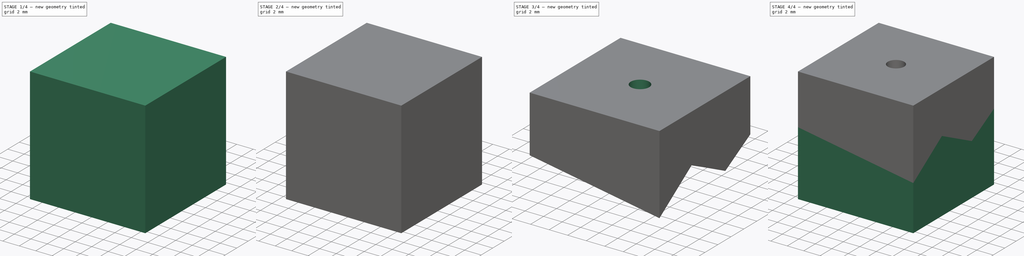
[diagram: build sequence overview — one tinted view per stage of 4, left to right]
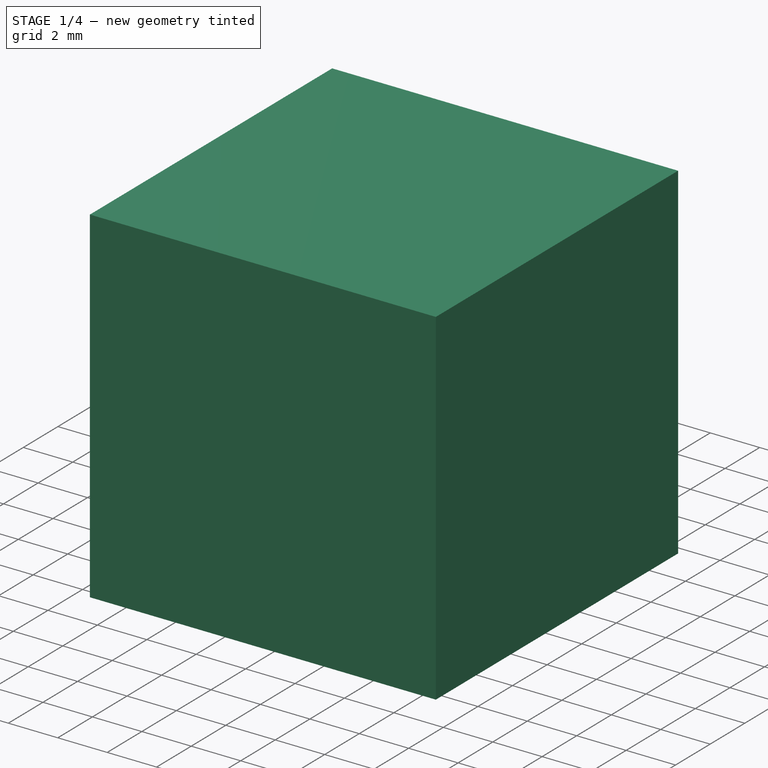
[diagram: stage 1 of 4 — iso view after this stage's code; geometry added in this stage tinted green]
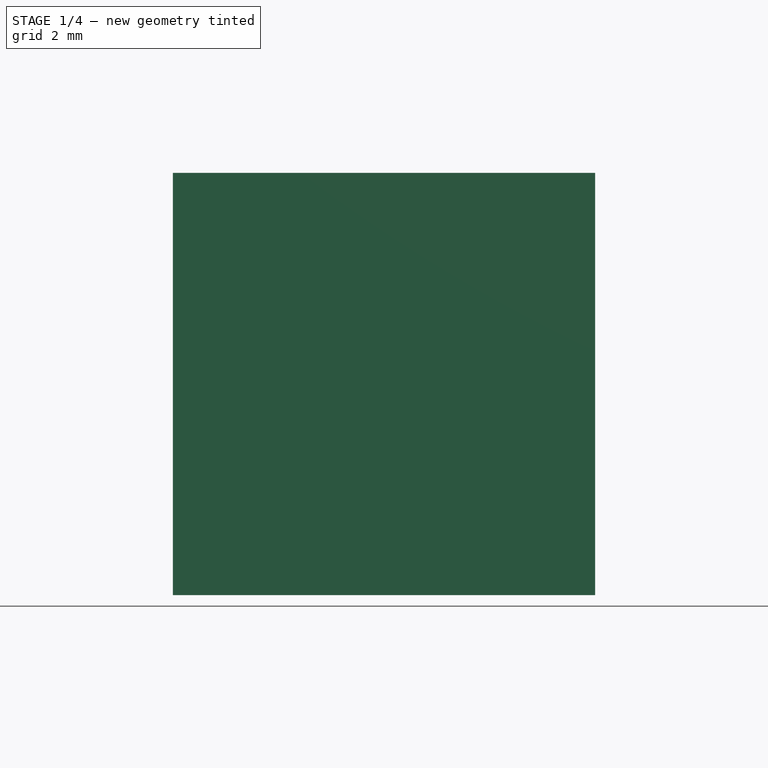
[diagram: stage 1 of 4 — front view after this stage's code; geometry added in this stage tinted green]
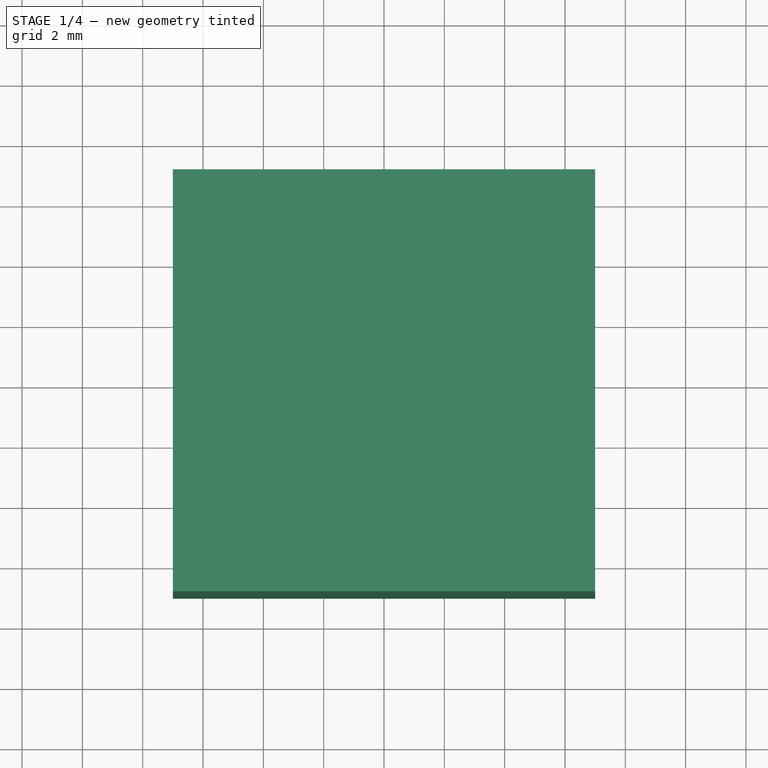
[diagram: stage 1 of 4 — top view after this stage's code; geometry added in this stage tinted green]
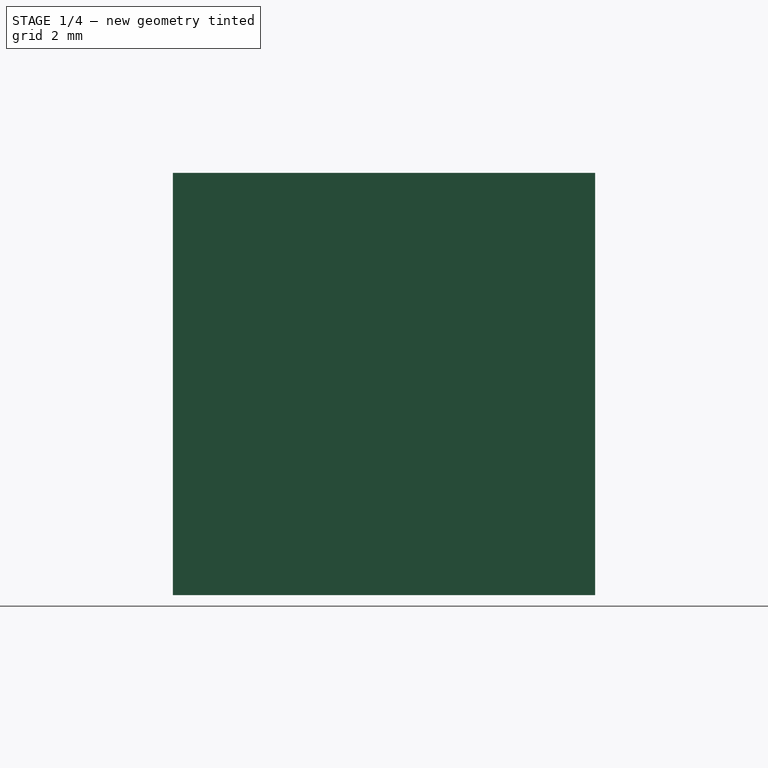
[diagram: stage 1 of 4 — right view after this stage's code; geometry added in this stage tinted green]
FCSTD DOCUMENT  (FreeCAD 0.19R24344 (Git))
Label: Mold-10mm
Comment: Mold for creating 10mm sphere out of clay. 
License: Creative Commons Attribution-NonCommercial-ShareAlike
LicenseURL: http://creativecommons.org/licenses/by-nc-sa/4.0/
objects: Part::RuledSurface×3, Part::FeaturePython×3, Part::Feature×2, PartDesign::FeatureBase×2, PartDesign::Body×2, Part::Box×1, Part::Sphere×1, Part::Cut×1, Part::MultiFuse×1, App::DocumentObjectGroup×1, Sketcher::SketchObject×1, PartDesign::Pocket×1
note: 19 computed .brp shape members not serialized (recipe doc carries the construction recipe); baked Part::Feature solids carry a one-line shape summary decoded from their .brp

FEATURE [Part::Box] Box  label="Cube"
  AttacherType = Attacher::AttachEngine3D
  Height = 14
  Length = 14
  Placement = pos=(-7,-7,-7) rot=(0,0,1;0rad)
  Width = 14
FEATURE [Part::Sphere] Sphere
  Angle1 = -90
  Angle2 = 90
  Angle3 = 360
  AttacherType = Attacher::AttachEngine3D
  Radius = 5
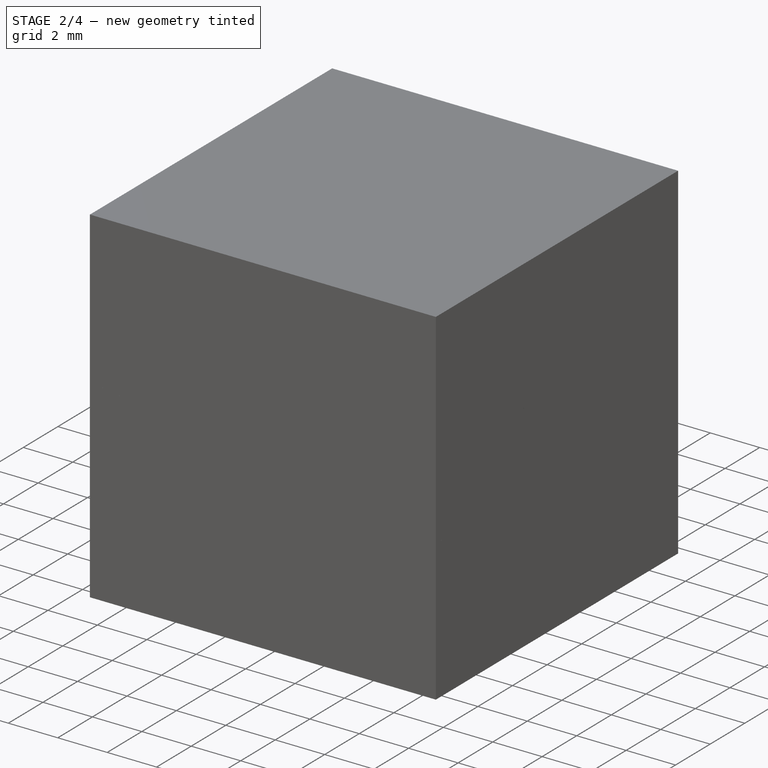
[diagram: stage 2 of 4 — iso view after this stage's code; geometry added in this stage tinted green]
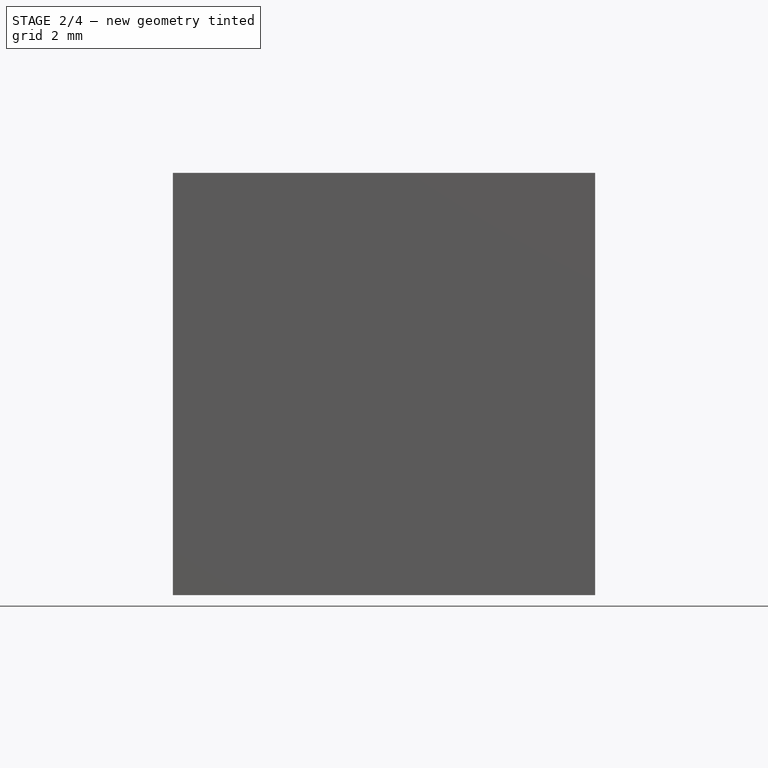
[diagram: stage 2 of 4 — front view after this stage's code; geometry added in this stage tinted green]
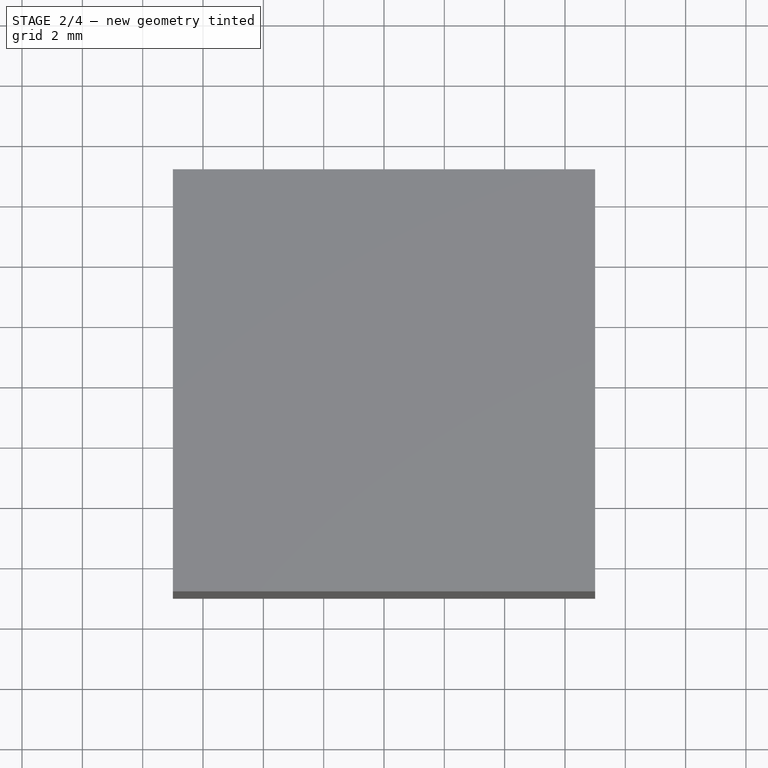
[diagram: stage 2 of 4 — top view after this stage's code; geometry added in this stage tinted green]
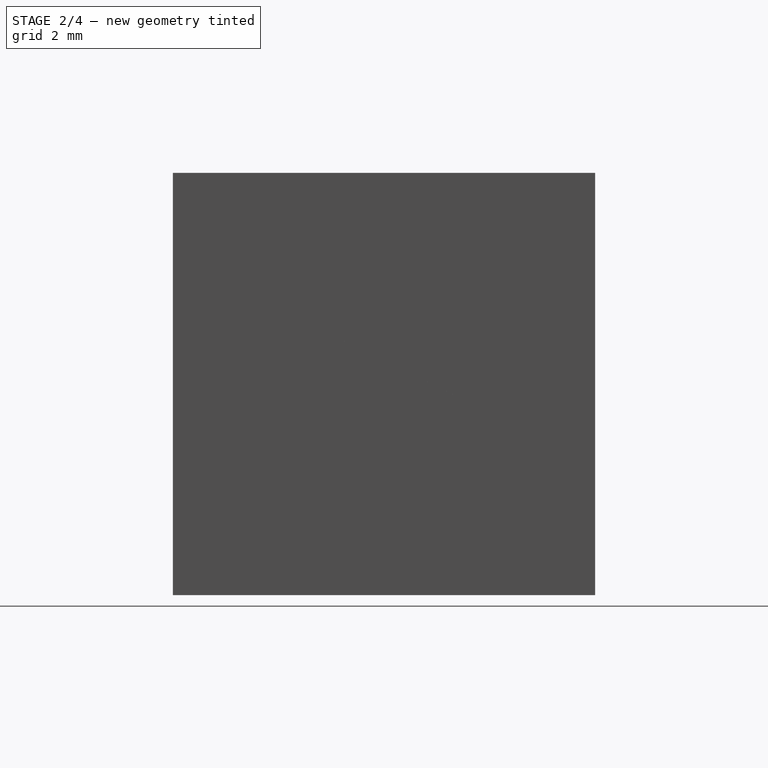
[diagram: stage 2 of 4 — right view after this stage's code; geometry added in this stage tinted green]
FEATURE [Part::Feature] Cut_cs
  shape: bbox 14 x 14 x 3e-07 mm, 0 faces, 0 solids (baked)
FEATURE [Part::Cut] Cut
  Base = -> Box
  Tool = -> Sphere
FEATURE [Part::Feature] Wire
  Placement = pos=(-7,-1.99839,-1.17455) rot=(0,0,1;0rad)
  shape: bbox 14 x 14 x 4.314 mm, 0 faces, 0 solids (baked)
FEATURE [Part::RuledSurface] Ruled_Surface
  Curve1 = -> Wire [Edge7]
  Curve2 = -> Wire [Edge1]
  Orientation = 0
  Placement = pos=(-7,-1.99839,-1.17455) rot=(0,0,1;0rad)
FEATURE [Part::RuledSurface] Ruled_Surface001
  Curve1 = -> Wire [Edge12]
  Curve2 = -> Wire [Edge8]
  Orientation = 0
  Placement = pos=(-7,-1.99839,-1.17455) rot=(0,0,1;0rad)
FEATURE [Part::RuledSurface] Ruled_Surface002
  Curve1 = -> Wire [Edge2]
  Curve2 = -> Wire [Edge6]
  Orientation = 0
  Placement = pos=(-7,-1.99839,-1.17455) rot=(0,0,1;0rad)
FEATURE [Part::MultiFuse] Fusion
  Shapes = -> [Ruled_Surface,Ruled_Surface001,Ruled_Surface002]
FEATURE [Part::FeaturePython] Slice  # WARN: FeaturePython — macro-defined, semantics opaque (R4)
  Base = -> Cut
  Mode = 1
  Tolerance = 0
  Tools = -> [Fusion]
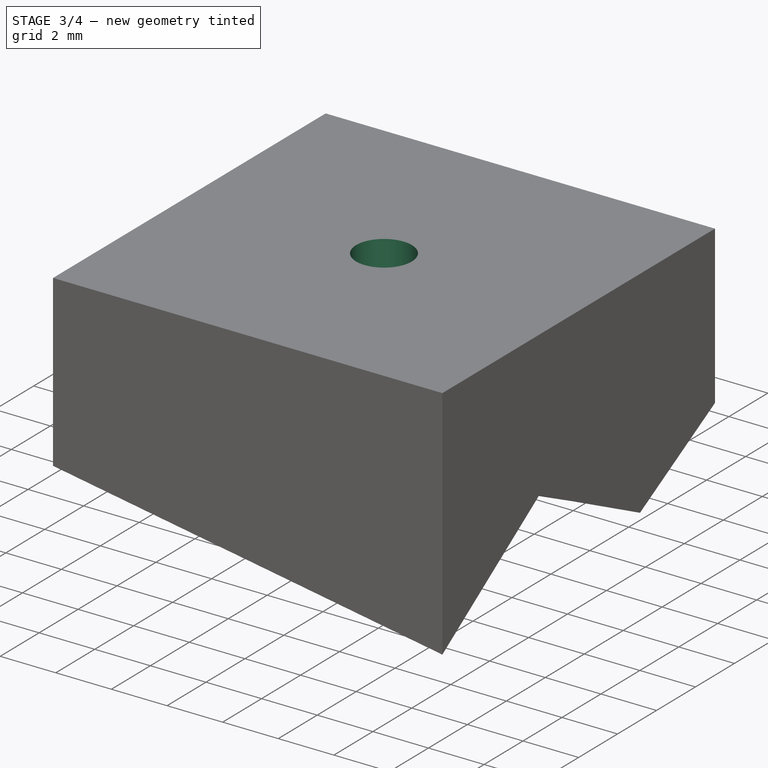
[diagram: stage 3 of 4 — iso view after this stage's code; geometry added in this stage tinted green]
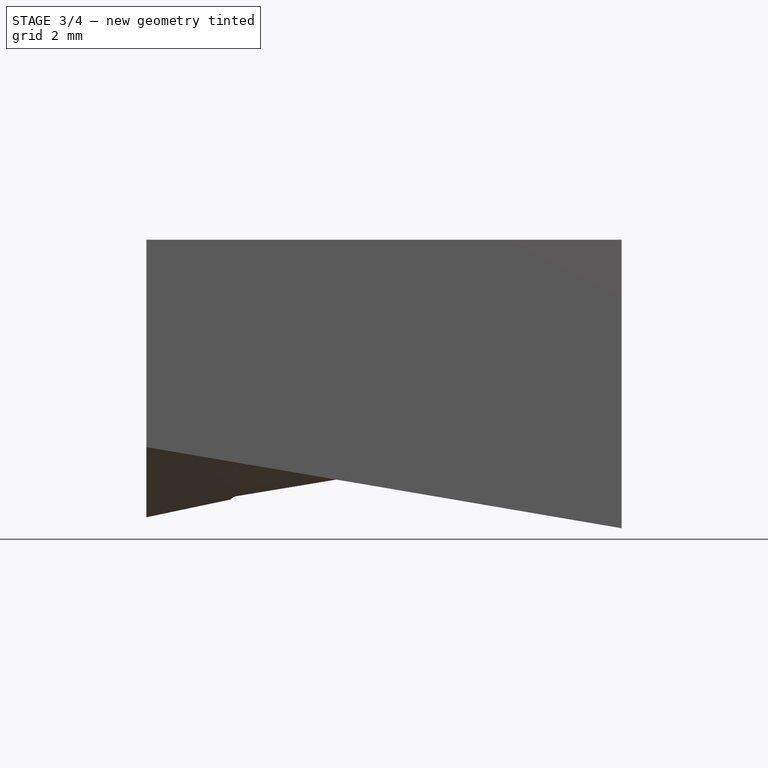
[diagram: stage 3 of 4 — front view after this stage's code; geometry added in this stage tinted green]
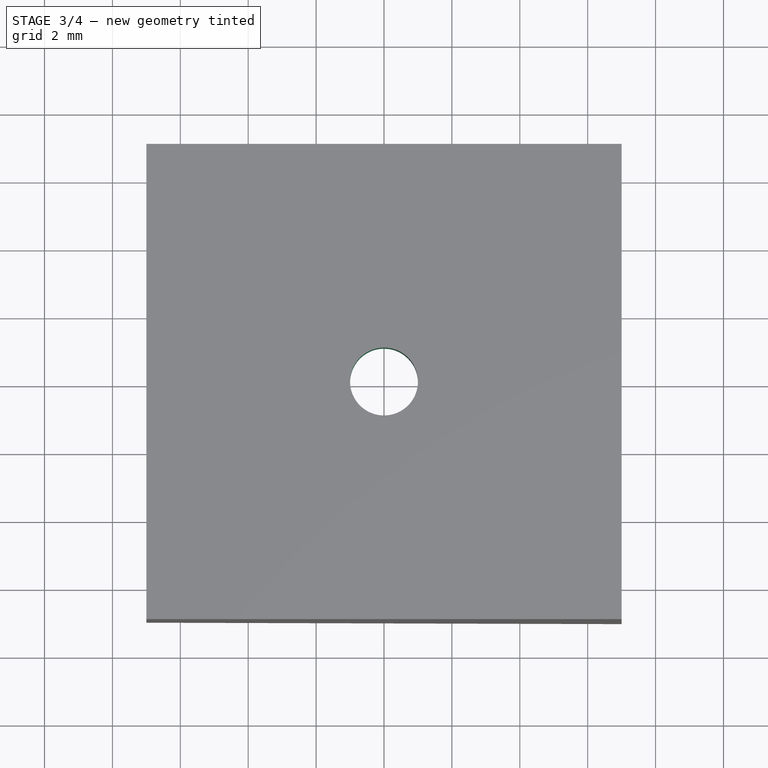
[diagram: stage 3 of 4 — top view after this stage's code; geometry added in this stage tinted green]
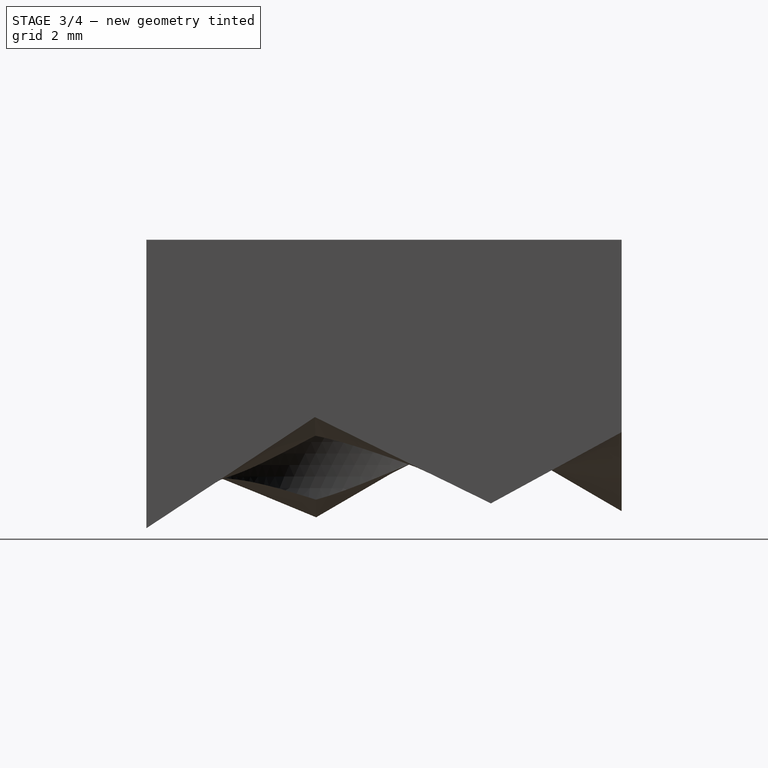
[diagram: stage 3 of 4 — right view after this stage's code; geometry added in this stage tinted green]
FEATURE [Part::FeaturePython] Slice_child1  label="Slice.1"  # WARN: FeaturePython — macro-defined, semantics opaque (R4)
  Base = -> Slice
  FilterType = 1
  Invert = false
  OverrideMaxVal = 0
  Placement = pos=(0,0,2) rot=(0,0,1;0rad)
  WindowFrom = 80
  WindowTo = 100
  items = 1
FEATURE [PartDesign::Body] Body  label="Bottom"
  BaseFeature = -> Slice_child0
  Group = -> [BaseFeature]
  Origin = -> Origin
  Tip = -> BaseFeature
FEATURE [PartDesign::FeatureBase] BaseFeature001
  BaseFeature = -> Slice_child1
FEATURE [Sketcher::SketchObject] Sketch
  FullyConstrained = true
  MapMode = 5
  Placement = pos=(0,0,7) rot=(0,0,1;0rad)
  Support = -> [BaseFeature001]
  sketch-geometry (1):
    g0: Circle CenterX=0 CenterY=0 CenterZ=0 NormalX=0 NormalY=0 NormalZ=1 AngleXU=0 Radius=1
  constraints (2):
    c: Coincident(g0,g-1)
    c: Radius(g0) = 1
FEATURE [PartDesign::Pocket] Pocket
  BaseFeature = -> BaseFeature001
  Length = 5
  Length2 = 100
  Profile = -> Sketch
  Type = 0
FEATURE [PartDesign::Body] Body001  label="Top"
  BaseFeature = -> Slice_child1
  Group = -> [BaseFeature001,Sketch,Pocket]
  Origin = -> Origin001
  Placement = pos=(15,0,0) rot=(1,0,0;3.14159rad)
  Tip = -> Pocket
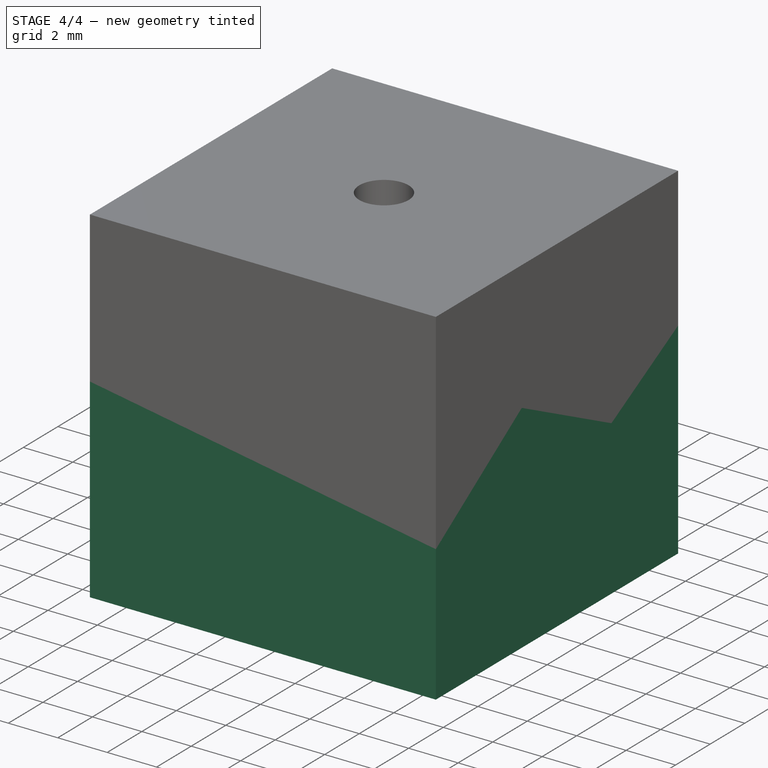
[diagram: stage 4 of 4 — iso view after this stage's code; geometry added in this stage tinted green]
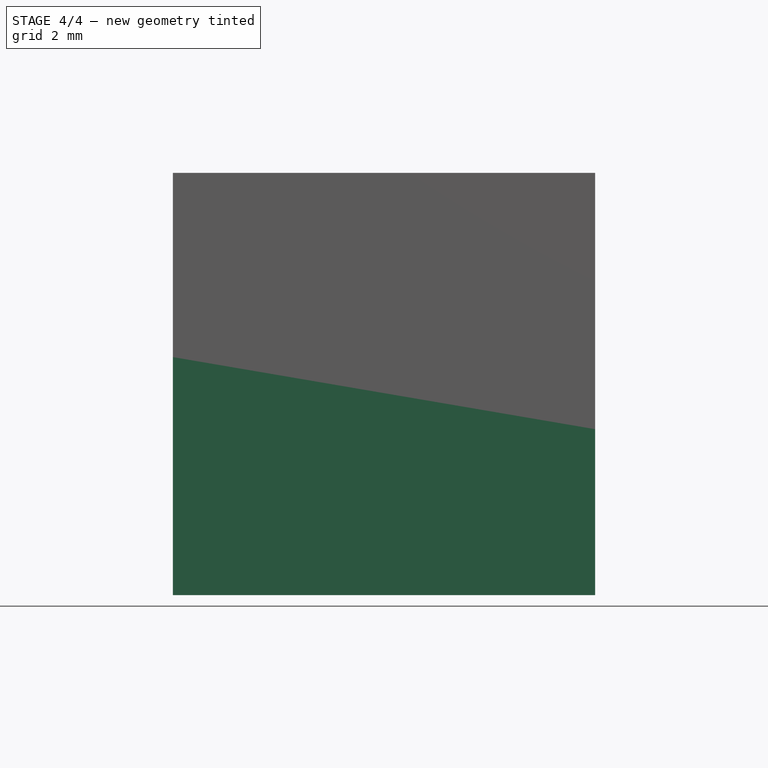
[diagram: stage 4 of 4 — front view after this stage's code; geometry added in this stage tinted green]
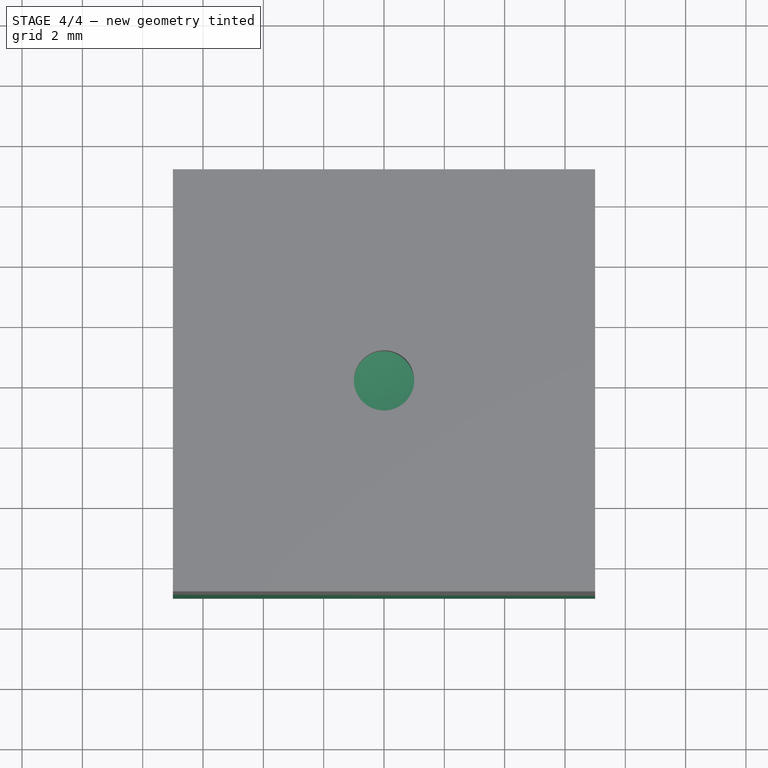
[diagram: stage 4 of 4 — top view after this stage's code; geometry added in this stage tinted green]
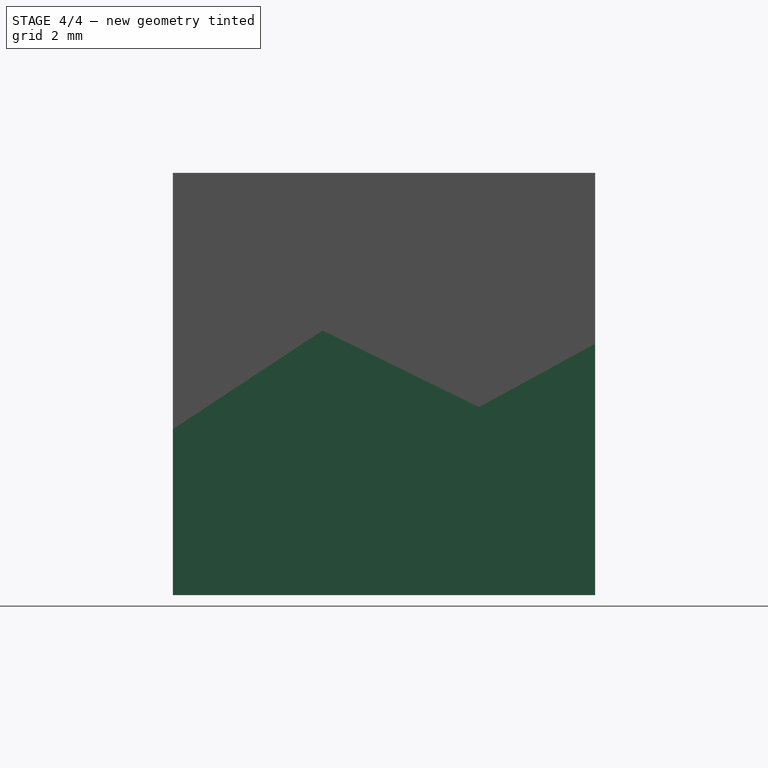
[diagram: stage 4 of 4 — right view after this stage's code; geometry added in this stage tinted green]
FEATURE [Part::FeaturePython] Slice_child0  label="Slice.0"  # WARN: FeaturePython — macro-defined, semantics opaque (R4)
  Base = -> Slice
  FilterType = 1
  Invert = false
  OverrideMaxVal = 0
  WindowFrom = 80
  WindowTo = 100
  items = 0
FEATURE [App::DocumentObjectGroup] GrExplode_Slice  label="Exploded Slice"
  Group = -> [Slice_child0,Slice_child1]
FEATURE [PartDesign::FeatureBase] BaseFeature
  BaseFeature = -> Slice_child0
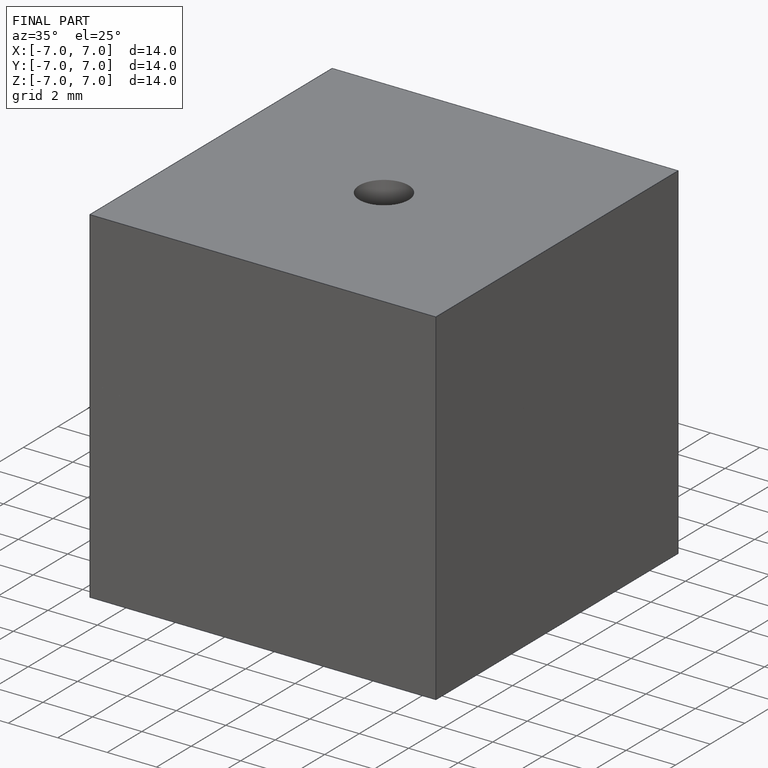
[diagram: finished part — iso view with bounding-box wireframe]
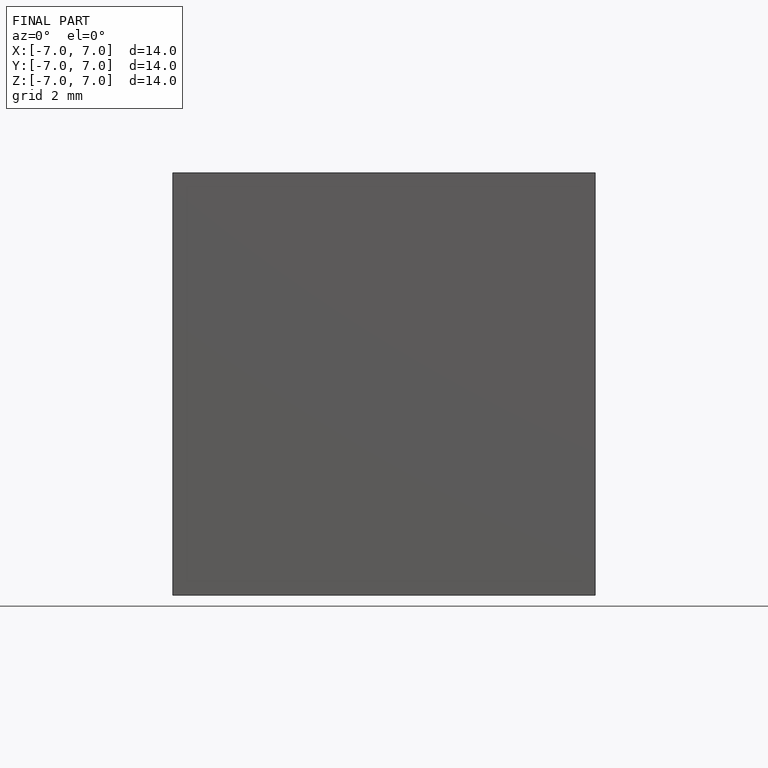
[diagram: finished part — front view with bounding-box wireframe]
